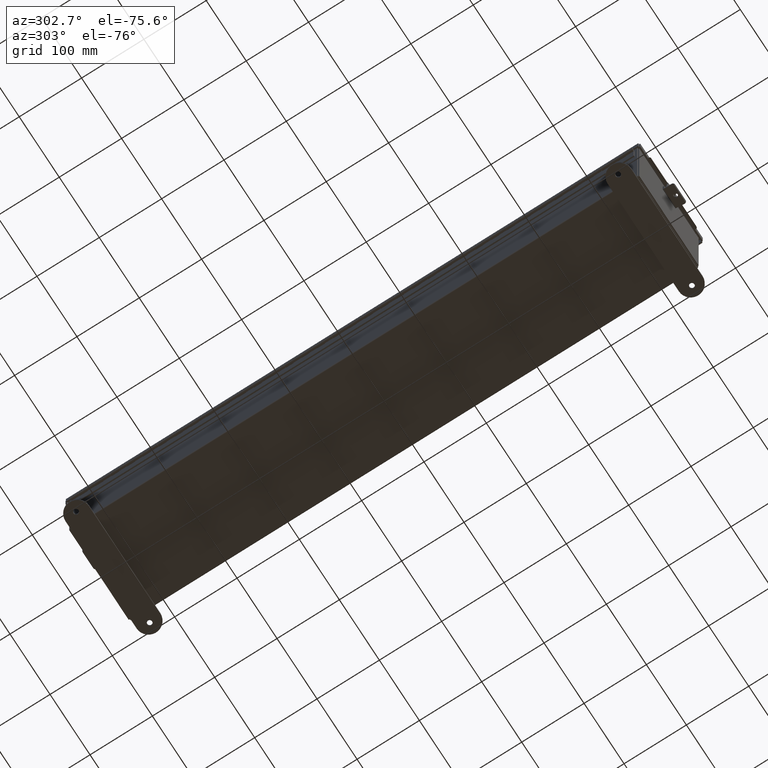
[diagram: clean part render]
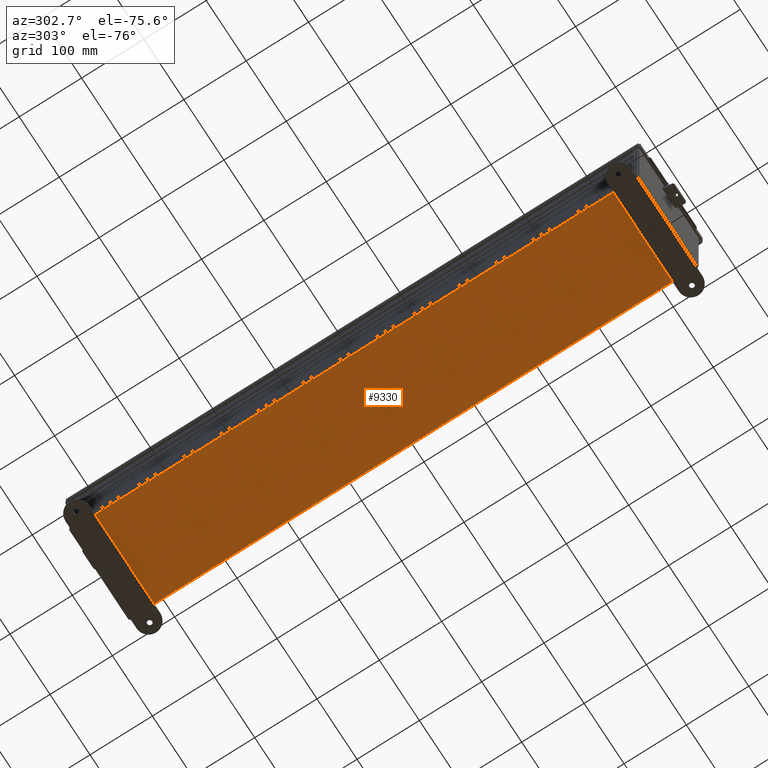
[diagram: same view with one face highlighted and labeled with its STEP entity id]
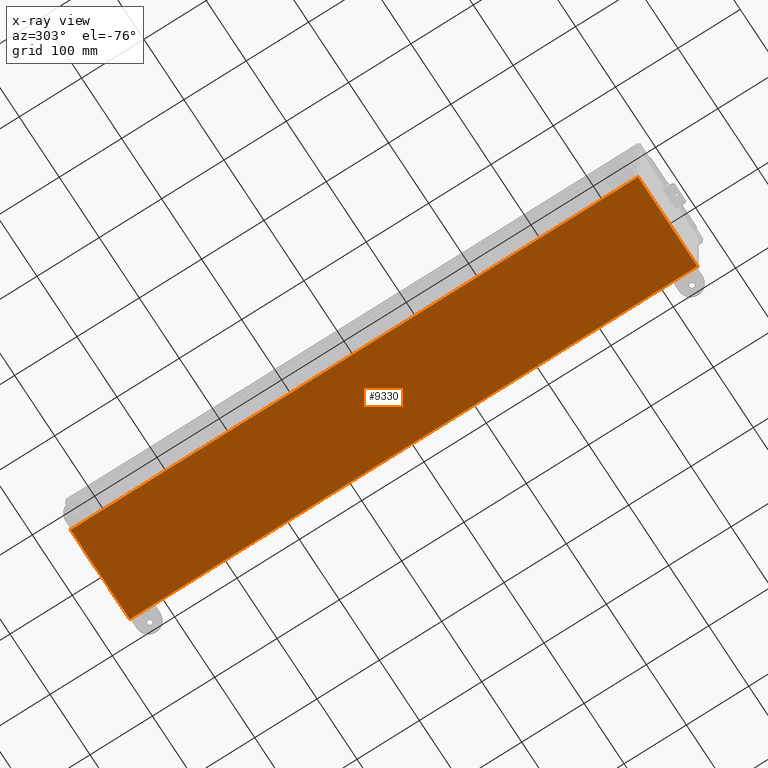
[diagram: x-ray of the same camera — body ghosted, the highlighted face saturated]
A machine part, auxiliary view. The second image highlights one B-rep face of the part: STEP entity #9330.
The next image is the same camera in x-ray: the body ghosted, the highlighted face saturated — about 0% of this face is hidden behind the body in this view.
In plain terms, the highlighted planar face has unit normal (0, 0, -1).
Its self-contained STEP definition (entity closure, byte-faithful):
#708 = DIRECTION ( 'NONE',  ( -0.0000000000000000000, -1.000000000000000000, -8.208677865577646300E-017 ) ) ;
#1114 = EDGE_CURVE ( 'NONE', #25945, #6498, #11226, .T. ) ;
#1923 = ORIENTED_EDGE ( 'NONE', *, *, #10865, .F. ) ;
#2074 = CARTESIAN_POINT ( 'NONE',  ( -2.999999999999999600, 17.92530000000000000, -0.07470000000000000300 ) ) ;
#2353 = ORIENTED_EDGE ( 'NONE', *, *, #1114, .F. ) ;
#2664 = DIRECTION ( 'NONE',  ( -1.000000000000000000, -0.0000000000000000000, -0.0000000000000000000 ) ) ;
#3206 = CARTESIAN_POINT ( 'NONE',  ( 0.0000000000000000000, 0.0000000000000000000, -0.07470000000000000300 ) ) ;
#4084 = VECTOR ( 'NONE', #14346, 39.37007874015748100 ) ;
#4768 = VERTEX_POINT ( 'NONE', #28854 ) ;
#5471 = EDGE_CURVE ( 'NONE', #25945, #29220, #15807, .T. ) ;
#6498 = VERTEX_POINT ( 'NONE', #22869 ) ;
#6781 = CARTESIAN_POINT ( 'NONE',  ( 2.912300000000000600, 17.92530000000000000, -0.07469999999999738000 ) ) ;
#9330 = ADVANCED_FACE ( 'NONE', ( #18780 ), #13800, .T. ) ;
#9722 = VECTOR ( 'NONE', #708, 39.37007874015748100 ) ;
#10480 = ORIENTED_EDGE ( 'NONE', *, *, #5471, .T. ) ;
#10865 = EDGE_CURVE ( 'NONE', #4768, #29220, #10874, .T. ) ;
#10874 = LINE ( 'NONE', #12047, #4084 ) ;
#11226 = LINE ( 'NONE', #2074, #22612 ) ;
#12047 = CARTESIAN_POINT ( 'NONE',  ( -2.999999999999999600, -17.92530000000000000, -0.07470000000000000300 ) ) ;
#13800 = PLANE ( 'NONE',  #25571 ) ;
#14346 = DIRECTION ( 'NONE',  ( 1.000000000000000000, 0.0000000000000000000, 0.0000000000000000000 ) ) ;
#15447 = CARTESIAN_POINT ( 'NONE',  ( -2.912299999999999200, -17.92530000000000000, -0.07470000000000223700 ) ) ;
#15807 = LINE ( 'NONE', #21246, #9722 ) ;
#16449 = EDGE_LOOP ( 'NONE', ( #2353, #10480, #1923, #28882 ) ) ;
#17651 = DIRECTION ( 'NONE',  ( -0.0000000000000000000, 1.000000000000000000, 8.208677865577646300E-017 ) ) ;
#18088 = DIRECTION ( 'NONE',  ( 0.0000000000000000000, 0.0000000000000000000, -1.000000000000000000 ) ) ;
#18301 = LINE ( 'NONE', #15447, #18999 ) ;
#18780 = FACE_OUTER_BOUND ( 'NONE', #16449, .T. ) ;
#18999 = VECTOR ( 'NONE', #17651, 39.37007874015748100 ) ;
#21246 = CARTESIAN_POINT ( 'NONE',  ( 2.912300000000000600, 17.92530000000000000, -0.07469999999999738000 ) ) ;
#22612 = VECTOR ( 'NONE', #2664, 39.37007874015748100 ) ;
#22869 = CARTESIAN_POINT ( 'NONE',  ( -2.912299999999999200, 17.92530000000000000, -0.07470000000000000300 ) ) ;
#23948 = EDGE_CURVE ( 'NONE', #4768, #6498, #18301, .T. ) ;
#24421 = CARTESIAN_POINT ( 'NONE',  ( 2.912300000000000600, -17.92530000000000000, -0.07470000000000000300 ) ) ;
#25571 = AXIS2_PLACEMENT_3D ( 'NONE', #3206, #18088, #26665 ) ;
#25945 = VERTEX_POINT ( 'NONE', #6781 ) ;
#26665 = DIRECTION ( 'NONE',  ( -1.000000000000000000, 0.0000000000000000000, -0.0000000000000000000 ) ) ;
#28854 = CARTESIAN_POINT ( 'NONE',  ( -2.912299999999999200, -17.92530000000000000, -0.07470000000000223700 ) ) ;
#28882 = ORIENTED_EDGE ( 'NONE', *, *, #23948, .T. ) ;
#29220 = VERTEX_POINT ( 'NONE', #24421 ) ;